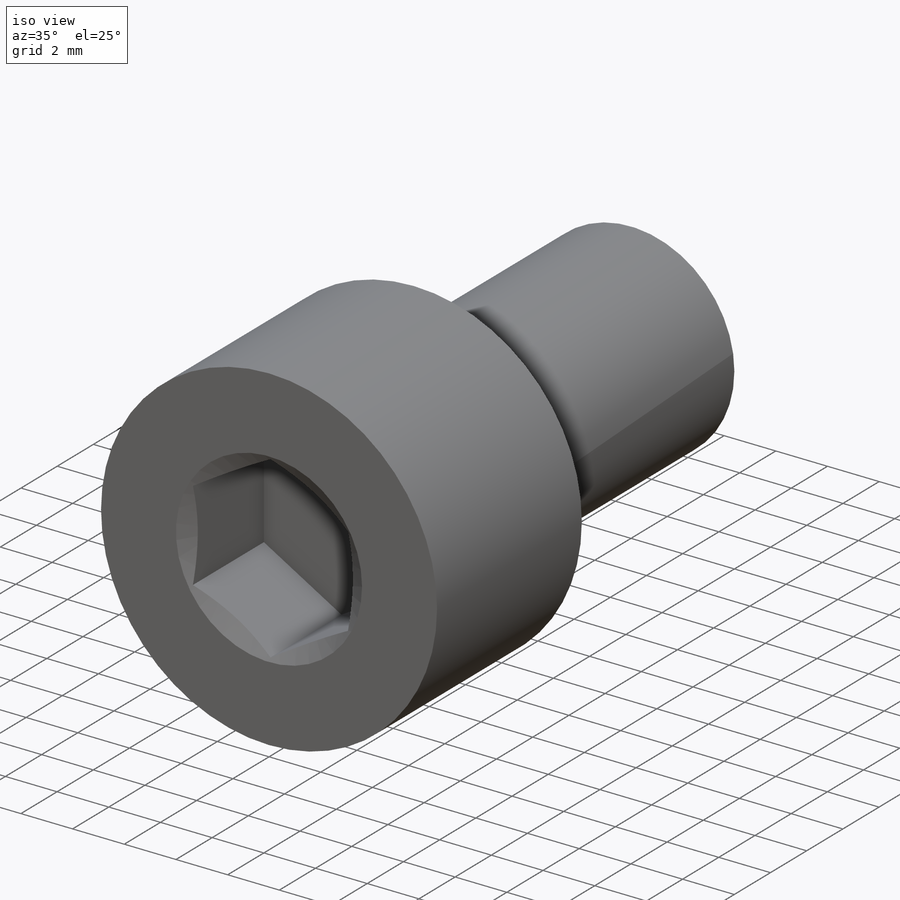
[diagram: iso view]
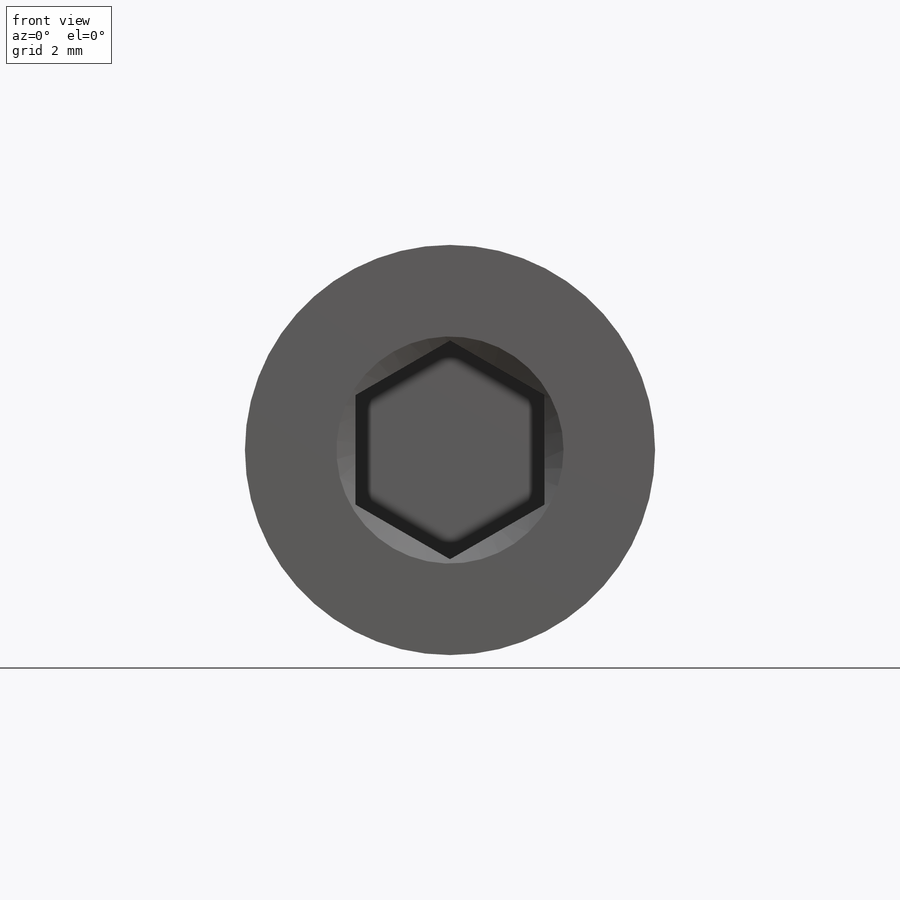
[diagram: front view]
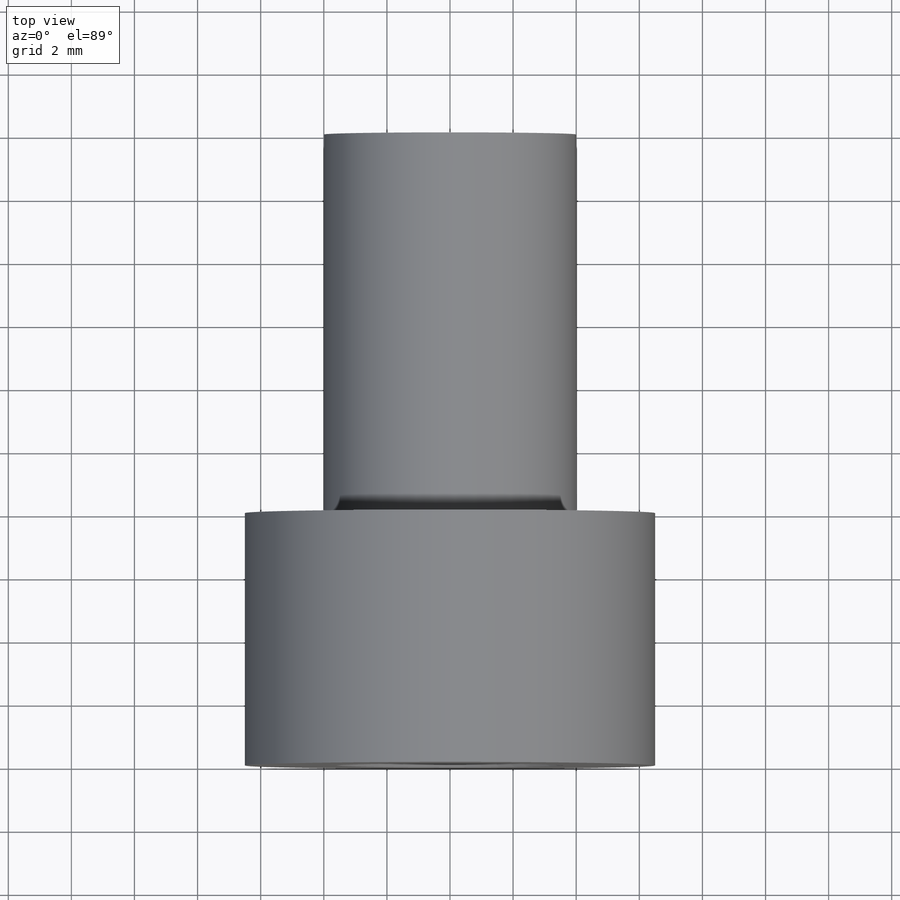
[diagram: top view]
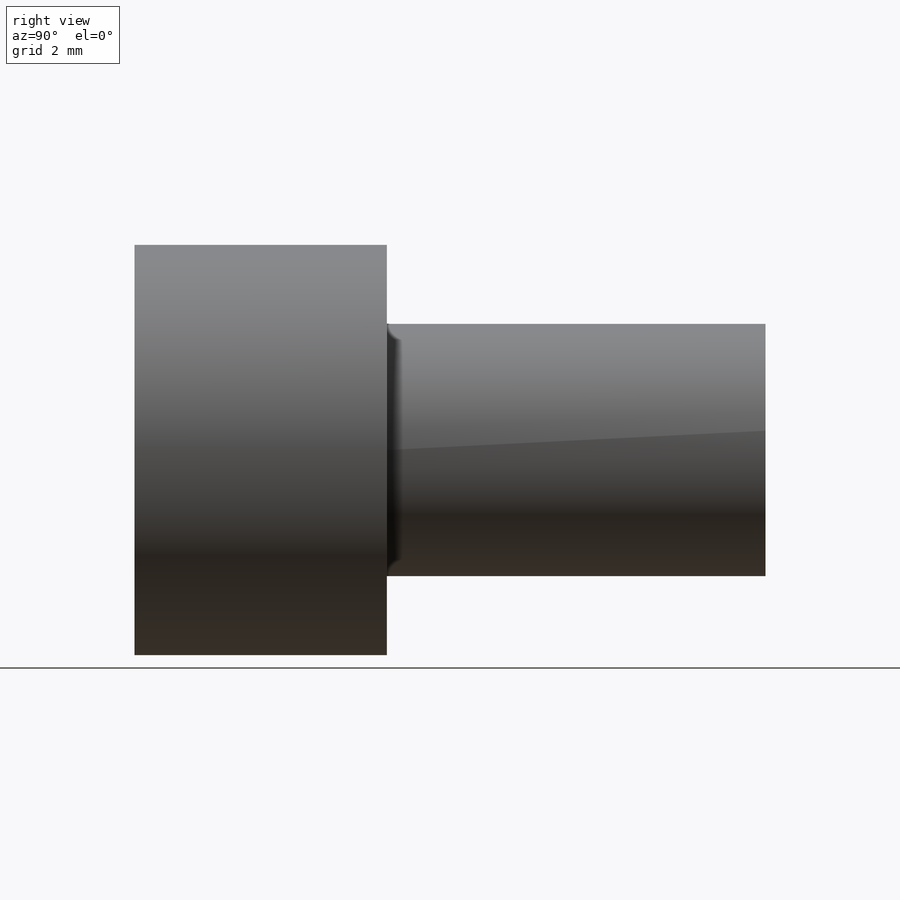
[diagram: right view]
SOLIDWORKS PART (.sldprt)
format: sldprt  version: not decoded by parser v0  size: 1,608,192 bytes
history: native  units: mm
features: thread x10, sketch x4, plane x3, revolve x3, extrude x2, material x1, cut_extrude x1 (+11 scaffold rows collapsed; 1 parser-record rows omitted)
feature tree (36):
  scaffold x11  (default folders/planes/origin — collapsed)
  material  "Материал <не указан>"
  plane  "Плоскость1"
  plane  "Плоскость2"
  plane  "Плоскость3"
  parser-record x1  (decoder bookkeeping rows leaked as tree rows — omitted from the tree; the rows remain in map.json)
  sketch  "Ske1"  dims[D1=~72.691511mm]
  extrude  "Base1"  [1 undecoded]
  sketch  "BodySke"  dims[c1.D1=2.0mm c1.D2=7.0mm c2.D1=~9.803689mm c3.D1=~3.586701mm c3.D2=6.0mm c3.D3=~0.565909mm c4.D1=~1.349511mm c4.D2=~3.650489mm c4.D3=6.0mm]
  revolve  "BaseBody"  [1 undecoded]
  thread  "ThreadCosmetic"  [2 undecoded]
  sketch  "Ske8"  dims[D1=~3.550569mm]
  cut_extrude  "Hex"  [1 undecoded]
  sketch  "Ske9"  dims[D1=~6.818729mm]
  extrude  "Chamfer"  Depth=1047.197551mm
  thread  "#swsysprm#"  [2 undecoded]
  revolve  "PTricksAttrrInst5"  [1 undecoded]
  thread  "PTricksEqu"  [2 undecoded]
  thread  "PTricksFreeParameters"  TesisParameTricks5=0deg  [2 undecoded]
  thread  "PTricksEqu"  [2 undecoded]
  thread  "PTricksFreeParameters"  [2 undecoded]
  revolve  "SolidworksEditDefinition"  [1 undecoded]
  thread  "PartNumberID"  [2 undecoded]
  thread  "ConfigurationName"  Diameter=0 CopiedFlag=0 SolidworksEditDefinition=0deg  [1 undecoded]
  thread  "PartNumberID"  [2 undecoded]
  thread  "ConfigurationName"  Diameter=0 CopiedFlag=0  [1 undecoded]
decode coverage: 8 of 20 modeling features carry decoded parameters
note: ~ marks probable driven/reference dimensions
note: 23 parameter values undecoded
summary: no parameter record found for 13 features
note: suppression state not decoded; provenance and decode notes live in map.json
